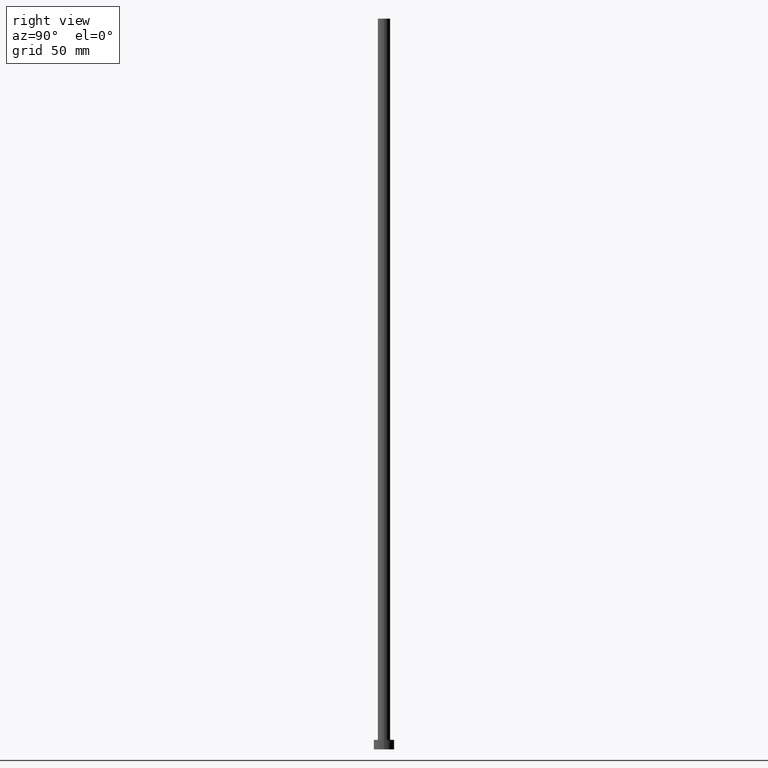
[diagram: clean part render]
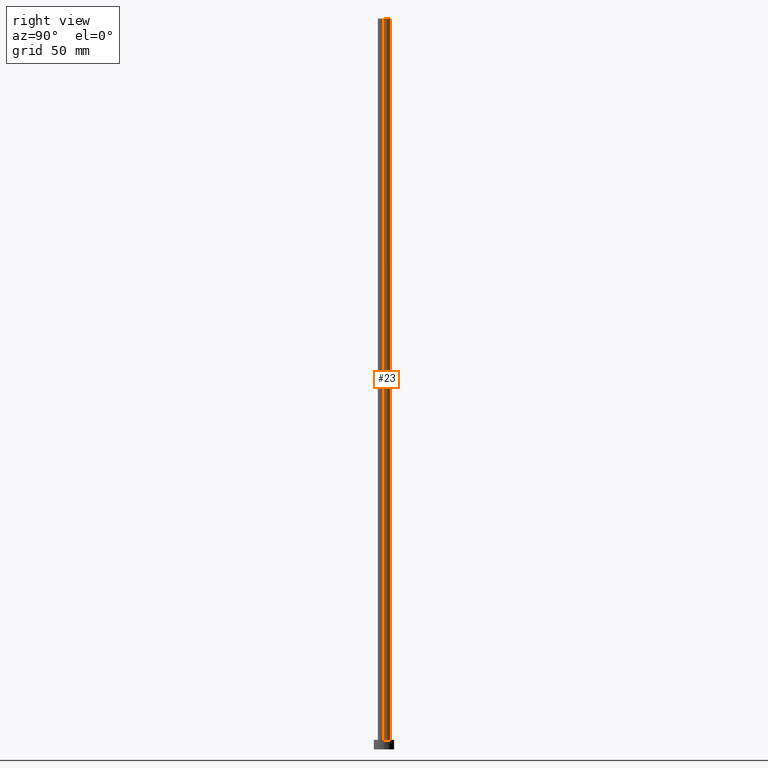
[diagram: same view with one face highlighted and labeled with its STEP entity id]
A machine part, right view. The second image highlights one B-rep face of the part: STEP entity #23.
In plain terms, the highlighted cylindrical surface (edge-blend (fillet) strip) has radius 4.25 mm, axis along (-0, -0, -1).
Its self-contained STEP definition (entity closure, byte-faithful):
#5 = CARTESIAN_POINT ( 'NONE',  ( 0.000000000000000000, 0.000000000000000000, 500.0000000000000000 ) ) ;
#12 = ORIENTED_EDGE ( 'NONE', *, *, #217, .F. ) ;
#13 = CARTESIAN_POINT ( 'NONE',  ( 4.250000000000000000, 5.204748896376250699E-16, 500.0000000000000000 ) ) ;
#14 = CARTESIAN_POINT ( 'NONE',  ( -4.250000000000000000, 0.000000000000000000, 6.500000000000000000 ) ) ;
#16 = AXIS2_PLACEMENT_3D ( 'NONE', #5, #55, #135 ) ;
#23 = ADVANCED_FACE ( 'NONE', ( #43 ), #122, .T. ) ;
#27 = CARTESIAN_POINT ( 'NONE',  ( 0.000000000000000000, 0.000000000000000000, 500.0000000000000000 ) ) ;
#34 = CIRCLE ( 'NONE', #16, 4.250000000000000000 ) ;
#40 = DIRECTION ( 'NONE',  ( 0.000000000000000000, 0.000000000000000000, 1.000000000000000000 ) ) ;
#41 = ORIENTED_EDGE ( 'NONE', *, *, #46, .F. ) ;
#42 = CARTESIAN_POINT ( 'NONE',  ( 4.250000000000000000, 5.204748896376250699E-16, 500.0000000000000000 ) ) ;
#43 = FACE_OUTER_BOUND ( 'NONE', #45, .T. ) ;
#45 = EDGE_LOOP ( 'NONE', ( #12, #167, #185, #41 ) ) ;
#46 = EDGE_CURVE ( 'NONE', #120, #253, #67, .T. ) ;
#47 = DIRECTION ( 'NONE',  ( -1.000000000000000000, 0.000000000000000000, 0.000000000000000000 ) ) ;
#49 = CIRCLE ( 'NONE', #199, 4.250000000000000000 ) ;
#54 = DIRECTION ( 'NONE',  ( 1.000000000000000000, 0.000000000000000000, 0.000000000000000000 ) ) ;
#55 = DIRECTION ( 'NONE',  ( 0.000000000000000000, 0.000000000000000000, 1.000000000000000000 ) ) ;
#66 = VECTOR ( 'NONE', #204, 1000.000000000000000 ) ;
#67 = LINE ( 'NONE', #230, #216 ) ;
#69 = VERTEX_POINT ( 'NONE', #13 ) ;
#87 = DIRECTION ( 'NONE',  ( -0.000000000000000000, -0.000000000000000000, -1.000000000000000000 ) ) ;
#112 = LINE ( 'NONE', #42, #66 ) ;
#116 = EDGE_CURVE ( 'NONE', #69, #154, #112, .T. ) ;
#120 = VERTEX_POINT ( 'NONE', #142 ) ;
#122 = CYLINDRICAL_SURFACE ( 'NONE', #220, 4.250000000000000000 ) ;
#124 = DIRECTION ( 'NONE',  ( -0.000000000000000000, -0.000000000000000000, -1.000000000000000000 ) ) ;
#135 = DIRECTION ( 'NONE',  ( 1.000000000000000000, 0.000000000000000000, 0.000000000000000000 ) ) ;
#142 = CARTESIAN_POINT ( 'NONE',  ( -4.250000000000000000, 0.000000000000000000, 500.0000000000000000 ) ) ;
#154 = VERTEX_POINT ( 'NONE', #254 ) ;
#158 = CARTESIAN_POINT ( 'NONE',  ( 0.000000000000000000, 0.000000000000000000, 6.500000000000000000 ) ) ;
#167 = ORIENTED_EDGE ( 'NONE', *, *, #116, .T. ) ;
#176 = EDGE_CURVE ( 'NONE', #154, #253, #49, .T. ) ;
#185 = ORIENTED_EDGE ( 'NONE', *, *, #176, .T. ) ;
#199 = AXIS2_PLACEMENT_3D ( 'NONE', #158, #40, #54 ) ;
#204 = DIRECTION ( 'NONE',  ( -0.000000000000000000, -0.000000000000000000, -1.000000000000000000 ) ) ;
#216 = VECTOR ( 'NONE', #124, 1000.000000000000000 ) ;
#217 = EDGE_CURVE ( 'NONE', #69, #120, #34, .T. ) ;
#220 = AXIS2_PLACEMENT_3D ( 'NONE', #27, #87, #47 ) ;
#230 = CARTESIAN_POINT ( 'NONE',  ( -4.250000000000000000, 0.000000000000000000, 500.0000000000000000 ) ) ;
#253 = VERTEX_POINT ( 'NONE', #14 ) ;
#254 = CARTESIAN_POINT ( 'NONE',  ( 4.250000000000000000, 5.204748896376250699E-16, 6.500000000000000000 ) ) ;